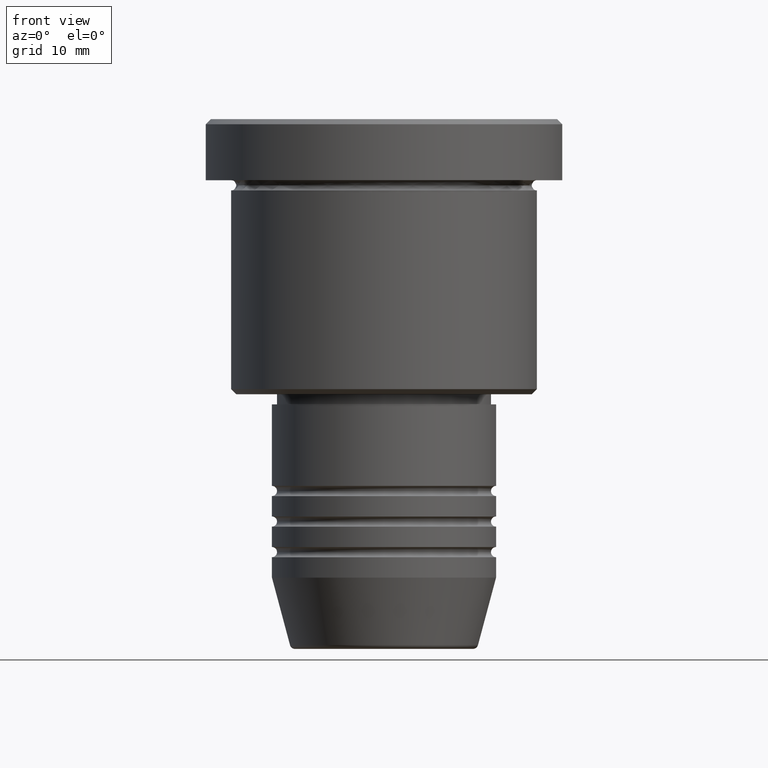
[diagram: clean part render]
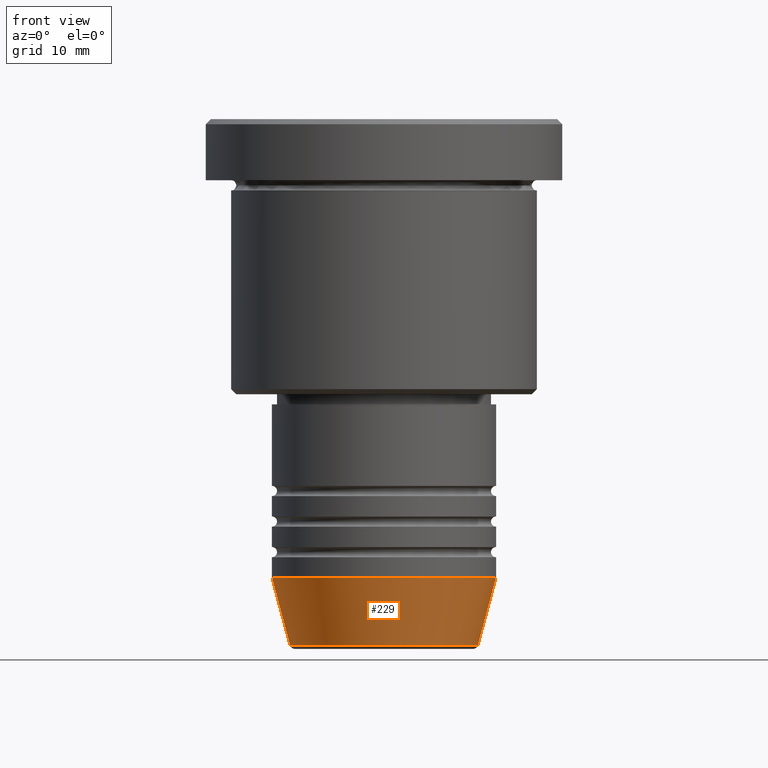
[diagram: same view with one face highlighted and labeled with its STEP entity id]
A machine part, front view. The second image highlights one B-rep face of the part: STEP entity #229.
In plain terms, the highlighted conical surface has half-angle 15 deg.
Its self-contained STEP definition (entity closure, byte-faithful):
#70 = VECTOR ( 'NONE', #643, 1000.000000000000000 ) ;
#87 = EDGE_CURVE ( 'NONE', #858, #402, #332, .T. ) ;
#162 = CARTESIAN_POINT ( 'NONE',  ( -9.223655072137193045, 1.238341722557647202E-15, -51.62940952255126348 ) ) ;
#220 = ORIENTED_EDGE ( 'NONE', *, *, #653, .T. ) ;
#229 = ADVANCED_FACE ( 'NONE', ( #1017 ), #821, .T. ) ;
#332 = LINE ( 'NONE', #435, #868 ) ;
#375 = CARTESIAN_POINT ( 'NONE',  ( 11.00000000000000000, 0.000000000000000000, -45.00000000000000000 ) ) ;
#385 = AXIS2_PLACEMENT_3D ( 'NONE', #490, #1136, #504 ) ;
#402 = VERTEX_POINT ( 'NONE', #857 ) ;
#426 = EDGE_CURVE ( 'NONE', #858, #575, #503, .T. ) ;
#435 = CARTESIAN_POINT ( 'NONE',  ( -11.00000000000000000, 1.347111479062088405E-15, -45.00000000000000000 ) ) ;
#474 = DIRECTION ( 'NONE',  ( -0.000000000000000000, -0.000000000000000000, 1.000000000000000000 ) ) ;
#490 = CARTESIAN_POINT ( 'NONE',  ( 0.000000000000000000, 0.000000000000000000, -51.62940952255126348 ) ) ;
#503 = CIRCLE ( 'NONE', #385, 9.223655072137193045 ) ;
#504 = DIRECTION ( 'NONE',  ( 1.000000000000000000, 0.000000000000000000, 0.000000000000000000 ) ) ;
#528 = DIRECTION ( 'NONE',  ( -0.2588190451025213501, 3.169619151431772337E-17, 0.9659258262890680902 ) ) ;
#538 = CARTESIAN_POINT ( 'NONE',  ( 9.223655072137193045, 0.000000000000000000, -51.62940952255126348 ) ) ;
#551 = AXIS2_PLACEMENT_3D ( 'NONE', #816, #913, #822 ) ;
#566 = DIRECTION ( 'NONE',  ( 1.000000000000000000, 0.000000000000000000, 0.000000000000000000 ) ) ;
#575 = VERTEX_POINT ( 'NONE', #538 ) ;
#580 = LINE ( 'NONE', #375, #70 ) ;
#630 = CIRCLE ( 'NONE', #792, 11.00000000000000000 ) ;
#638 = EDGE_CURVE ( 'NONE', #402, #1130, #630, .T. ) ;
#643 = DIRECTION ( 'NONE',  ( 0.2588190451025213501, 0.000000000000000000, 0.9659258262890680902 ) ) ;
#652 = CARTESIAN_POINT ( 'NONE',  ( 0.000000000000000000, 0.000000000000000000, -45.00000000000000000 ) ) ;
#653 = EDGE_CURVE ( 'NONE', #575, #1130, #580, .T. ) ;
#660 = CARTESIAN_POINT ( 'NONE',  ( 11.00000000000000000, 0.000000000000000000, -45.00000000000000000 ) ) ;
#686 = ORIENTED_EDGE ( 'NONE', *, *, #426, .T. ) ;
#792 = AXIS2_PLACEMENT_3D ( 'NONE', #652, #474, #566 ) ;
#804 = EDGE_LOOP ( 'NONE', ( #998, #686, #220, #1040 ) ) ;
#816 = CARTESIAN_POINT ( 'NONE',  ( 0.000000000000000000, 0.000000000000000000, -45.00000000000000000 ) ) ;
#821 = CONICAL_SURFACE ( 'NONE', #551, 11.00000000000000000, 0.2617993877991500740 ) ;
#822 = DIRECTION ( 'NONE',  ( 1.000000000000000000, 0.000000000000000000, 0.000000000000000000 ) ) ;
#857 = CARTESIAN_POINT ( 'NONE',  ( -11.00000000000000000, 1.347111479062088405E-15, -45.00000000000000000 ) ) ;
#858 = VERTEX_POINT ( 'NONE', #162 ) ;
#868 = VECTOR ( 'NONE', #528, 1000.000000000000000 ) ;
#913 = DIRECTION ( 'NONE',  ( -0.000000000000000000, -0.000000000000000000, 1.000000000000000000 ) ) ;
#998 = ORIENTED_EDGE ( 'NONE', *, *, #87, .F. ) ;
#1017 = FACE_OUTER_BOUND ( 'NONE', #804, .T. ) ;
#1040 = ORIENTED_EDGE ( 'NONE', *, *, #638, .F. ) ;
#1130 = VERTEX_POINT ( 'NONE', #660 ) ;
#1136 = DIRECTION ( 'NONE',  ( -0.000000000000000000, -0.000000000000000000, 1.000000000000000000 ) ) ;